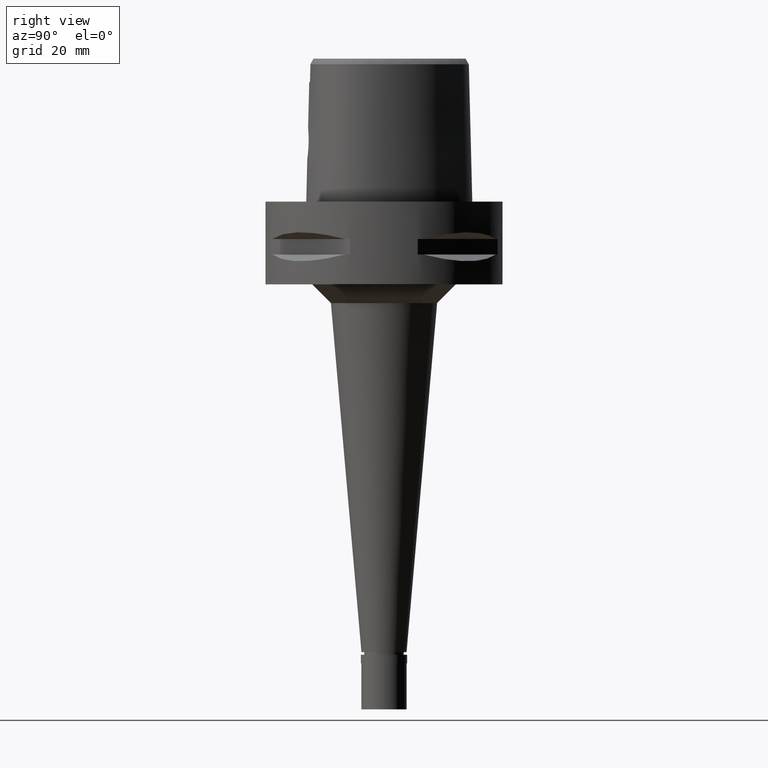
[diagram: clean part render]
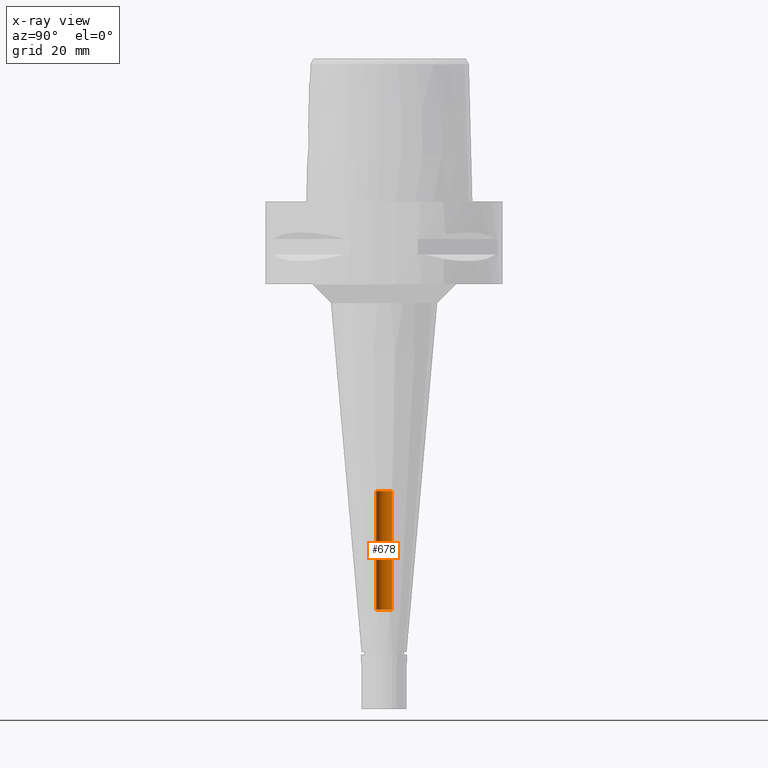
[diagram: x-ray — body ghosted, one internal face saturated and labeled with its STEP entity id]
A machine part, right view, then the same camera in x-ray: the body is ghosted and one INTERNAL B-rep face — a face not visible from any outside direction — is saturated and labeled: STEP entity #678.
In plain terms, the highlighted cylindrical surface (edge-blend (fillet) strip) has radius 2.1 mm, axis along (0, 0, -1).
Its self-contained STEP definition (entity closure, byte-faithful):
#143 = ORIENTED_EDGE ( 'NONE', *, *, #2984, .T. ) ;
#383 = AXIS2_PLACEMENT_3D ( 'NONE', #3537, #4171, #3904 ) ;
#429 = EDGE_CURVE ( 'NONE', #3721, #4224, #4735, .T. ) ;
#546 = VECTOR ( 'NONE', #4461, 1000.000000000000000 ) ;
#678 = ADVANCED_FACE ( 'NONE', ( #3515 ), #3124, .F. ) ;
#1045 = DIRECTION ( 'NONE',  ( 0.0000000000000000000, 0.0000000000000000000, -1.000000000000000000 ) ) ;
#1103 = VERTEX_POINT ( 'NONE', #3592 ) ;
#1126 = EDGE_LOOP ( 'NONE', ( #2371, #1304, #4337, #143 ) ) ;
#1137 = DIRECTION ( 'NONE',  ( 0.0000000000000000000, 1.000000000000000000, 0.0000000000000000000 ) ) ;
#1189 = EDGE_CURVE ( 'NONE', #1103, #4681, #3793, .T. ) ;
#1304 = ORIENTED_EDGE ( 'NONE', *, *, #4277, .F. ) ;
#1648 = DIRECTION ( 'NONE',  ( 0.0000000000000000000, 0.0000000000000000000, 1.000000000000000000 ) ) ;
#1660 = CARTESIAN_POINT ( 'NONE',  ( 0.0000000000000000000, -2.100000000000000089, -108.5000000000000000 ) ) ;
#1748 = VECTOR ( 'NONE', #1648, 1000.000000000000000 ) ;
#1945 = CARTESIAN_POINT ( 'NONE',  ( 0.0000000000000000000, 2.100000000000000089, -108.5000000000000000 ) ) ;
#2371 = ORIENTED_EDGE ( 'NONE', *, *, #1189, .T. ) ;
#2600 = LINE ( 'NONE', #3307, #546 ) ;
#2925 = DIRECTION ( 'NONE',  ( 0.0000000000000000000, 0.0000000000000000000, 1.000000000000000000 ) ) ;
#2984 = EDGE_CURVE ( 'NONE', #4224, #1103, #2600, .T. ) ;
#3124 = CYLINDRICAL_SURFACE ( 'NONE', #383, 2.100000000000000089 ) ;
#3307 = CARTESIAN_POINT ( 'NONE',  ( 0.0000000000000000000, 2.100000000000000089, -108.5000000000000000 ) ) ;
#3353 = DIRECTION ( 'NONE',  ( 0.0000000000000000000, -1.000000000000000000, 0.0000000000000000000 ) ) ;
#3512 = LINE ( 'NONE', #4301, #1748 ) ;
#3515 = FACE_OUTER_BOUND ( 'NONE', #1126, .T. ) ;
#3537 = CARTESIAN_POINT ( 'NONE',  ( 0.0000000000000000000, 1.304861164492000018E-14, 6.550000000000000711 ) ) ;
#3561 = AXIS2_PLACEMENT_3D ( 'NONE', #4103, #1045, #3353 ) ;
#3592 = CARTESIAN_POINT ( 'NONE',  ( 0.0000000000000000000, 2.100000000000000089, -77.00000000000000000 ) ) ;
#3721 = VERTEX_POINT ( 'NONE', #1660 ) ;
#3793 = CIRCLE ( 'NONE', #4655, 2.100000000000000089 ) ;
#3904 = DIRECTION ( 'NONE',  ( 0.0000000000000000000, -1.000000000000000000, 0.0000000000000000000 ) ) ;
#4103 = CARTESIAN_POINT ( 'NONE',  ( 0.0000000000000000000, 1.304861164492000018E-14, -108.5000000000000000 ) ) ;
#4146 = CARTESIAN_POINT ( 'NONE',  ( 0.0000000000000000000, 1.304861164492000018E-14, -77.00000000000000000 ) ) ;
#4171 = DIRECTION ( 'NONE',  ( 0.0000000000000000000, 0.0000000000000000000, -1.000000000000000000 ) ) ;
#4224 = VERTEX_POINT ( 'NONE', #1945 ) ;
#4277 = EDGE_CURVE ( 'NONE', #3721, #4681, #3512, .T. ) ;
#4301 = CARTESIAN_POINT ( 'NONE',  ( 0.0000000000000000000, -2.100000000000000089, -108.5000000000000000 ) ) ;
#4337 = ORIENTED_EDGE ( 'NONE', *, *, #429, .T. ) ;
#4461 = DIRECTION ( 'NONE',  ( 0.0000000000000000000, 0.0000000000000000000, 1.000000000000000000 ) ) ;
#4655 = AXIS2_PLACEMENT_3D ( 'NONE', #4146, #2925, #1137 ) ;
#4656 = CARTESIAN_POINT ( 'NONE',  ( 0.0000000000000000000, -2.100000000000000089, -77.00000000000000000 ) ) ;
#4681 = VERTEX_POINT ( 'NONE', #4656 ) ;
#4735 = CIRCLE ( 'NONE', #3561, 2.100000000000000089 ) ;